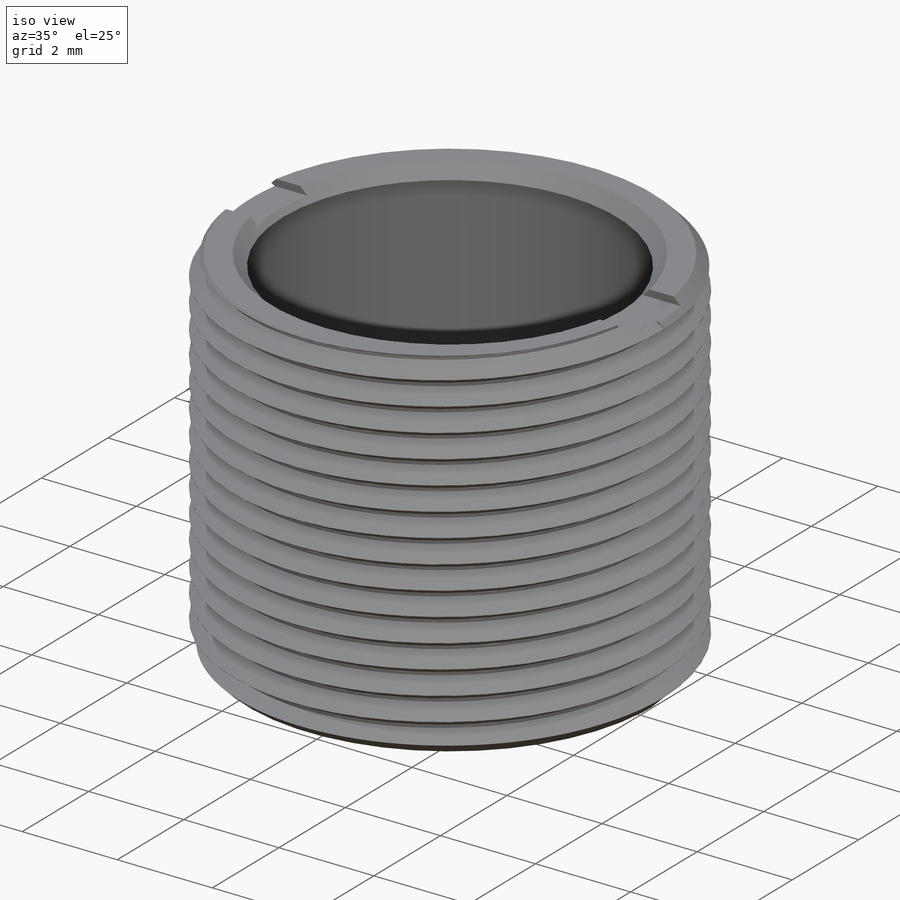
[diagram: iso view]
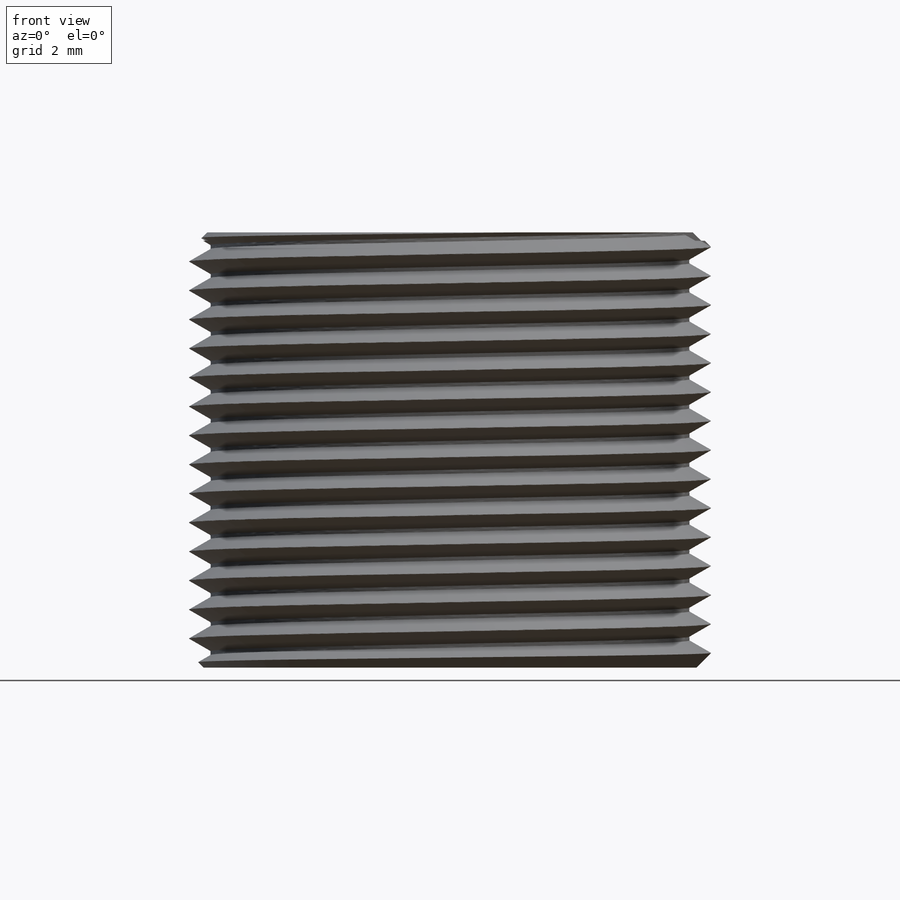
[diagram: front view]
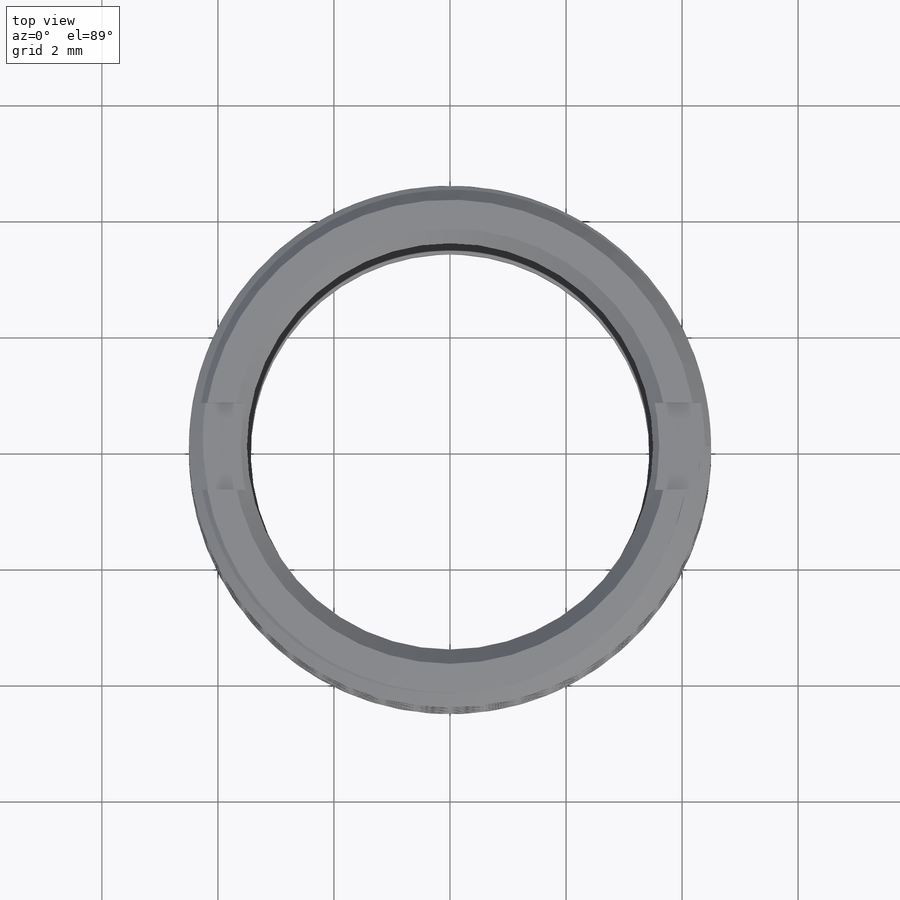
[diagram: top view]
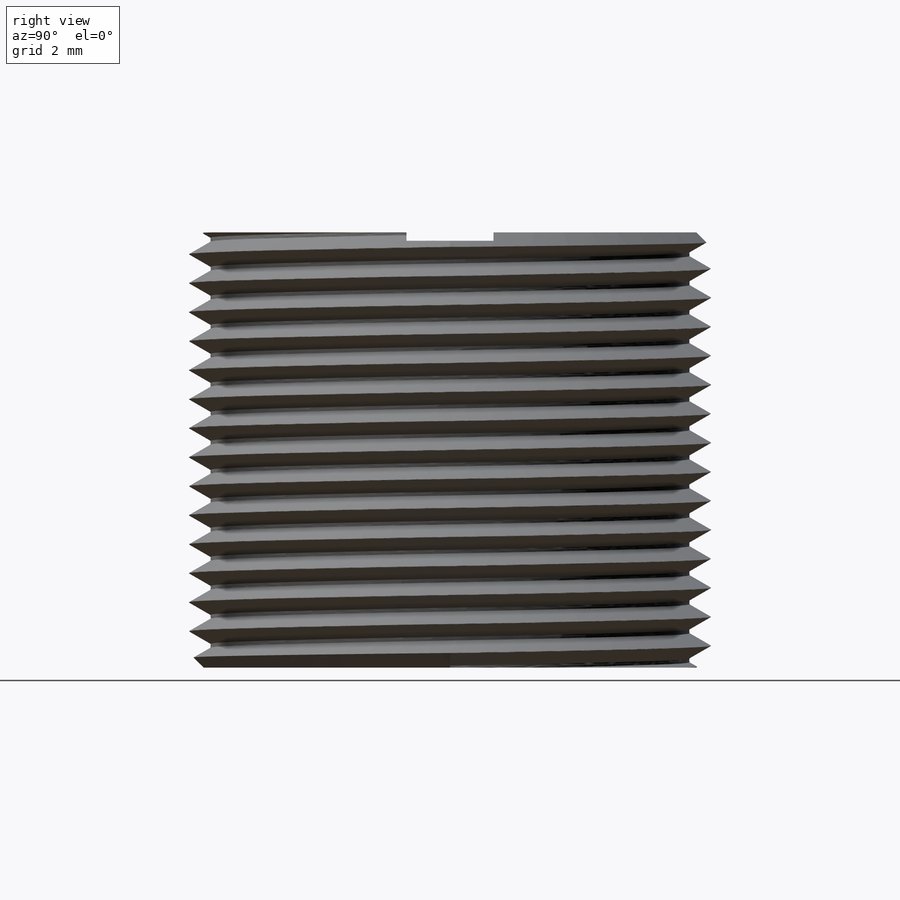
[diagram: right view]
SOLIDWORKS PART (.sldprt)
format: sldprt  version: not decoded by parser v0  size: 876,544 bytes
history: native  units: mm
features: sketch x7, chamfer x3, extrude x2, cut_extrude x2, material x1, thread x1, cut_revolve x1, helix x1, sweep x1 (+13 scaffold rows collapsed)
feature tree (32):
  scaffold x13  (default folders/planes/origin — collapsed)
  material  "Material <not specified>"
  sketch  "Sketch1"  dims[D1=9.0mm D2=1.0mm]
  extrude  "Boss-Extrude1"  [1 undecoded]
  thread  "Cosmetic Thread1"  Diameter=8mm  [1 undecoded]
  chamfer  "Chamfer1"  Distance=0.25mm Angle=45deg
  chamfer  "Chamfer2"  Distance=0.25mm Angle=45deg
  sketch  "Sketch2"
  cut_revolve  "Cut-Revolve1"  Angle=360deg
  chamfer  "Chamfer3"  Distance=0.25mm Angle=45deg
  sketch  "Sketch3"  dims[D1=0.75mm]
  cut_extrude  "Cut-Extrude3"  Depth=0.142616mm
  sketch  "Sketch4"  dims[D1=~9.044559mm]
  helix  "Helix/Spiral1"  Pitch=7.5mm
  sketch  "Sketch5"  dims[c1.D1=0.25mm c1.D2=~0.266971mm c2.D2=30.0deg c2.D3=0.25mm c2.D4=~1.190307mm c3.D2=~0.482708mm c4.D2=30.0deg c4.D4=0.125mm c4.D5=~0.861651mm]
  sweep  "Cut-Sweep3"
  sketch  "Sketch6"  dims[D1=2.5mm]
  extrude  "Boss-Extrude2"  Depth=0.5mm
  sketch  "Sketch7"  dims[D1=~6.867951mm]
  cut_extrude  "Cut-Extrude4"  Depth=10mm
decode coverage: 15 of 18 modeling features carry decoded parameters
note: ~ marks probable driven/reference dimensions
note: 2 parameter values undecoded
note: suppression state not decoded; provenance and decode notes live in map.json
